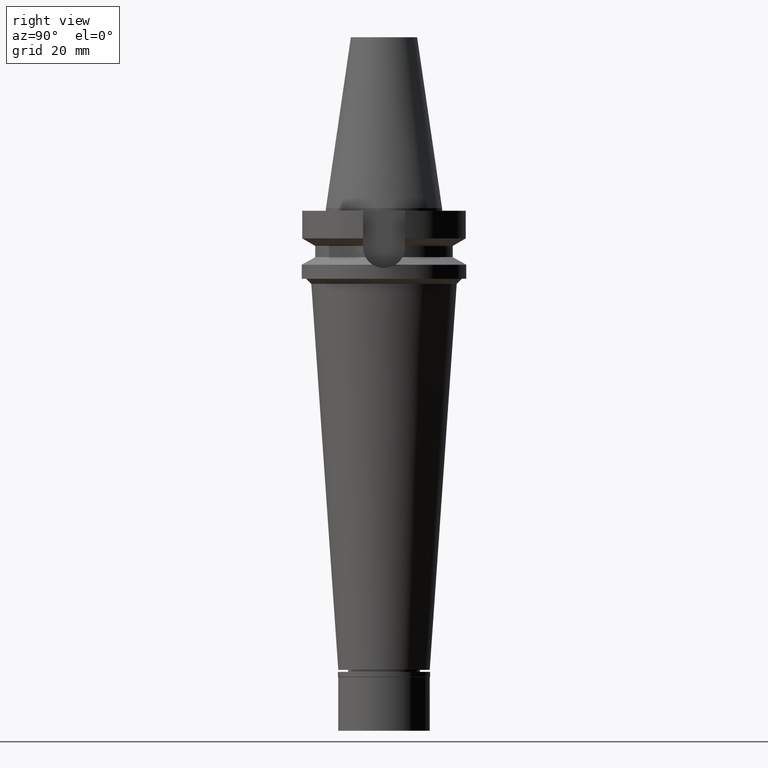
[diagram: clean part render]
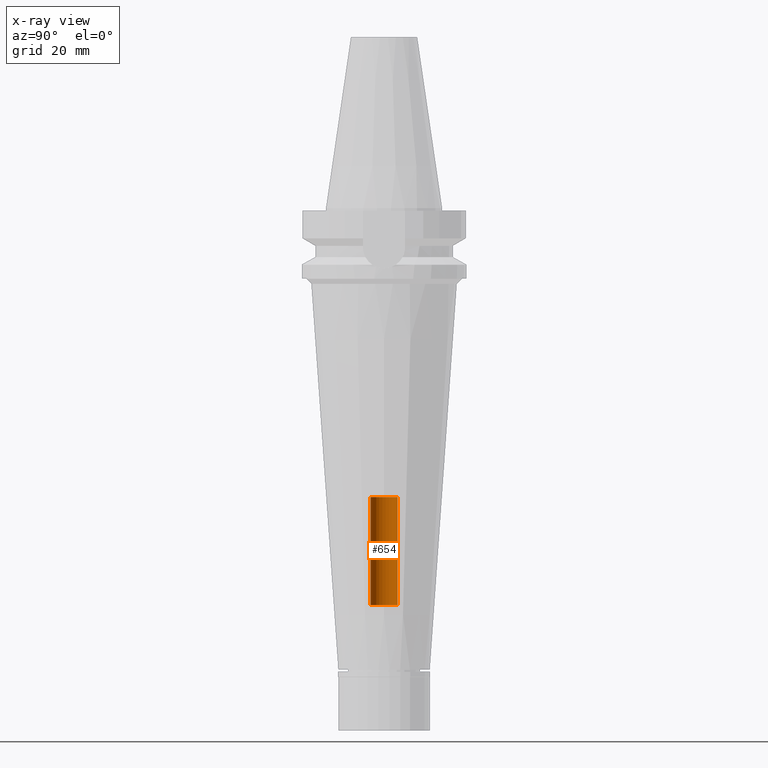
[diagram: x-ray — body ghosted, one internal face saturated and labeled with its STEP entity id]
A machine part, right view, then the same camera in x-ray: the body is ghosted and one INTERNAL B-rep face — a face not visible from any outside direction — is saturated and labeled: STEP entity #654.
In plain terms, the highlighted cylindrical surface (edge-blend (fillet) strip) has radius 5.2 mm, axis along (0, 0, -1).
Its self-contained STEP definition (entity closure, byte-faithful):
#127 = ORIENTED_EDGE ( 'NONE', *, *, #1640, .T. ) ;
#163 = EDGE_CURVE ( 'NONE', #938, #2418, #2162, .T. ) ;
#204 = CARTESIAN_POINT ( 'NONE',  ( 0.0000000000000000000, 2.183973869259000036E-14, -110.6000000000000085 ) ) ;
#425 = DIRECTION ( 'NONE',  ( 0.0000000000000000000, 0.0000000000000000000, -1.000000000000000000 ) ) ;
#477 = LINE ( 'NONE', #2945, #2158 ) ;
#645 = DIRECTION ( 'NONE',  ( 0.0000000000000000000, -1.000000000000000000, 0.0000000000000000000 ) ) ;
#654 = ADVANCED_FACE ( 'NONE', ( #1165 ), #1638, .F. ) ;
#714 = DIRECTION ( 'NONE',  ( 0.0000000000000000000, 0.0000000000000000000, 1.000000000000000000 ) ) ;
#877 = ORIENTED_EDGE ( 'NONE', *, *, #163, .F. ) ;
#938 = VERTEX_POINT ( 'NONE', #1836 ) ;
#1041 = CARTESIAN_POINT ( 'NONE',  ( 0.0000000000000000000, -5.200000000000000178, -110.6000000000000085 ) ) ;
#1096 = AXIS2_PLACEMENT_3D ( 'NONE', #204, #3077, #1635 ) ;
#1165 = FACE_OUTER_BOUND ( 'NONE', #2431, .T. ) ;
#1234 = VERTEX_POINT ( 'NONE', #1490 ) ;
#1271 = CARTESIAN_POINT ( 'NONE',  ( 0.0000000000000000000, 5.200000000000000178, -110.6000000000000085 ) ) ;
#1438 = DIRECTION ( 'NONE',  ( 0.0000000000000000000, 0.0000000000000000000, 1.000000000000000000 ) ) ;
#1441 = DIRECTION ( 'NONE',  ( 0.0000000000000000000, -1.000000000000000000, 0.0000000000000000000 ) ) ;
#1490 = CARTESIAN_POINT ( 'NONE',  ( 0.0000000000000000000, 5.200000000000000178, -152.0000000000000000 ) ) ;
#1508 = ORIENTED_EDGE ( 'NONE', *, *, #2147, .T. ) ;
#1635 = DIRECTION ( 'NONE',  ( 0.0000000000000000000, 1.000000000000000000, 0.0000000000000000000 ) ) ;
#1638 = CYLINDRICAL_SURFACE ( 'NONE', #2716, 5.200000000000000178 ) ;
#1640 = EDGE_CURVE ( 'NONE', #2695, #2418, #2810, .T. ) ;
#1653 = DIRECTION ( 'NONE',  ( 0.0000000000000000000, 0.0000000000000000000, -1.000000000000000000 ) ) ;
#1658 = AXIS2_PLACEMENT_3D ( 'NONE', #3103, #425, #645 ) ;
#1772 = ORIENTED_EDGE ( 'NONE', *, *, #2219, .T. ) ;
#1836 = CARTESIAN_POINT ( 'NONE',  ( 0.0000000000000000000, -5.200000000000000178, -152.0000000000000000 ) ) ;
#2126 = CARTESIAN_POINT ( 'NONE',  ( 0.0000000000000000000, 2.183973869259000036E-14, 78.33500000000000796 ) ) ;
#2147 = EDGE_CURVE ( 'NONE', #938, #1234, #3018, .T. ) ;
#2158 = VECTOR ( 'NONE', #1438, 1000.000000000000000 ) ;
#2162 = LINE ( 'NONE', #2389, #2509 ) ;
#2219 = EDGE_CURVE ( 'NONE', #1234, #2695, #477, .T. ) ;
#2389 = CARTESIAN_POINT ( 'NONE',  ( 0.0000000000000000000, -5.200000000000000178, -152.0000000000000000 ) ) ;
#2418 = VERTEX_POINT ( 'NONE', #1041 ) ;
#2431 = EDGE_LOOP ( 'NONE', ( #127, #877, #1508, #1772 ) ) ;
#2509 = VECTOR ( 'NONE', #714, 1000.000000000000000 ) ;
#2695 = VERTEX_POINT ( 'NONE', #1271 ) ;
#2716 = AXIS2_PLACEMENT_3D ( 'NONE', #2126, #1653, #1441 ) ;
#2810 = CIRCLE ( 'NONE', #1096, 5.200000000000000178 ) ;
#2945 = CARTESIAN_POINT ( 'NONE',  ( 0.0000000000000000000, 5.200000000000000178, -152.0000000000000000 ) ) ;
#3018 = CIRCLE ( 'NONE', #1658, 5.200000000000000178 ) ;
#3077 = DIRECTION ( 'NONE',  ( 0.0000000000000000000, 0.0000000000000000000, 1.000000000000000000 ) ) ;
#3103 = CARTESIAN_POINT ( 'NONE',  ( 0.0000000000000000000, 2.183973869259000036E-14, -152.0000000000000000 ) ) ;